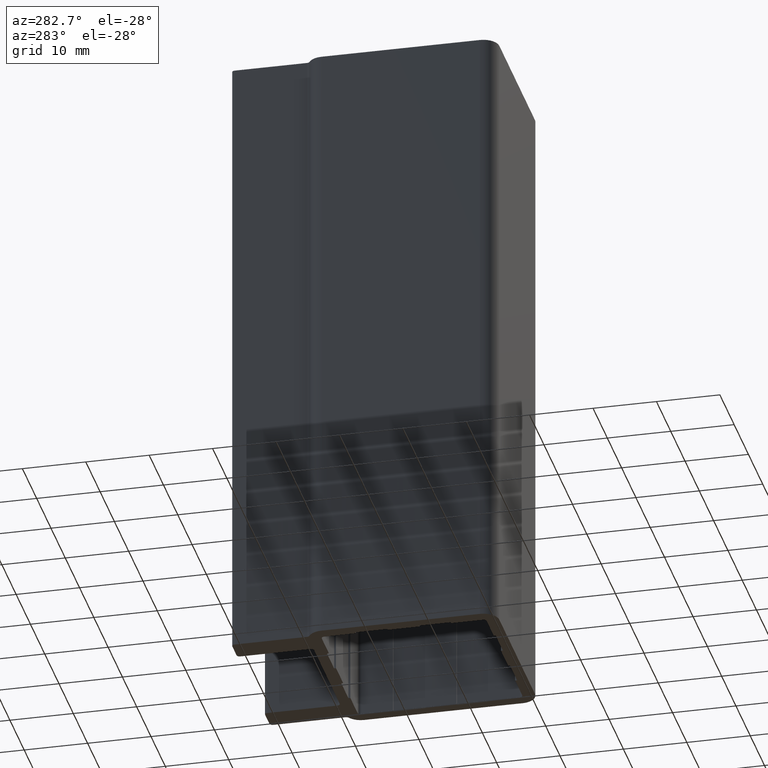
[diagram: clean part render]
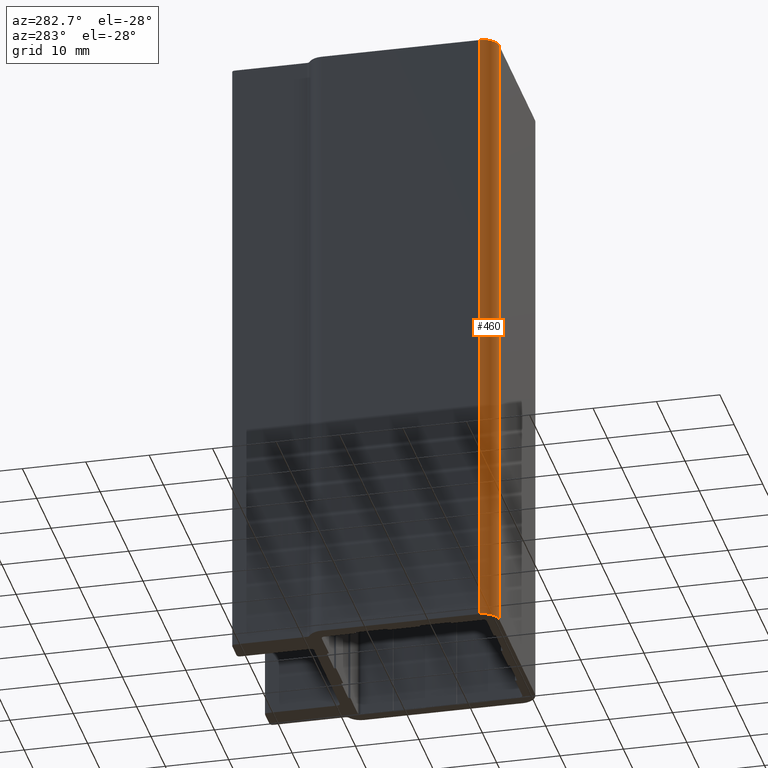
[diagram: same view with one face highlighted and labeled with its STEP entity id]
A machine part, auxiliary view. The second image highlights one B-rep face of the part: STEP entity #460.
In plain terms, the highlighted cylindrical surface (edge-blend (fillet) strip) has radius 2.5 mm, axis along (0, 0, 1).
Its self-contained STEP definition (entity closure, byte-faithful):
#403=CARTESIAN_POINT('',(-14.999999999984936,2.500000000000000,0.0));
#404=VERTEX_POINT('',#403);
#411=CARTESIAN_POINT('',(-14.999999999984936,2.500000000000000,100.0));
#412=VERTEX_POINT('',#411);
#413=CARTESIAN_POINT('',(-14.999999999984936,2.500000000000000,100.0));
#414=DIRECTION('',(0.0,0.0,-1.0));
#415=VECTOR('',#414,100.0);
#416=LINE('',#413,#415);
#417=EDGE_CURVE('',#412,#404,#416,.T.);
#428=CARTESIAN_POINT('',(-12.499999999984936,2.500000000000000,100.0));
#429=DIRECTION('',(0.0,0.0,1.0));
#430=DIRECTION('',(1.0,0.0,0.0));
#431=AXIS2_PLACEMENT_3D('',#428,#429,#430);
#432=CYLINDRICAL_SURFACE('',#431,2.500000000000000);
#433=ORIENTED_EDGE('',*,*,#417,.T.);
#434=CARTESIAN_POINT('',(-12.499999999984936,0.0,0.0));
#435=VERTEX_POINT('',#434);
#436=CARTESIAN_POINT('',(-12.499999999984936,2.500000000000000,0.0));
#437=DIRECTION('',(0.0,0.0,1.0));
#438=DIRECTION('',(1.0,0.0,0.0));
#439=AXIS2_PLACEMENT_3D('',#436,#437,#438);
#440=CIRCLE('',#439,2.500000000000000);
#441=EDGE_CURVE('',#404,#435,#440,.T.);
#442=ORIENTED_EDGE('',*,*,#441,.T.);
#443=CARTESIAN_POINT('',(-12.499999999984936,0.0,100.0));
#444=VERTEX_POINT('',#443);
#445=CARTESIAN_POINT('',(-12.499999999984936,0.0,100.0));
#446=DIRECTION('',(0.0,0.0,-1.0));
#447=VECTOR('',#446,100.0);
#448=LINE('',#445,#447);
#449=EDGE_CURVE('',#444,#435,#448,.T.);
#450=ORIENTED_EDGE('',*,*,#449,.F.);
#451=CARTESIAN_POINT('',(-12.499999999984936,2.500000000000000,100.0));
#452=DIRECTION('',(0.0,0.0,1.0));
#453=DIRECTION('',(1.0,0.0,0.0));
#454=AXIS2_PLACEMENT_3D('',#451,#452,#453);
#455=CIRCLE('',#454,2.500000000000000);
#456=EDGE_CURVE('',#412,#444,#455,.T.);
#457=ORIENTED_EDGE('',*,*,#456,.F.);
#458=EDGE_LOOP('',(#433,#442,#450,#457));
#459=FACE_OUTER_BOUND('',#458,.T.);
#460=ADVANCED_FACE('',(#459),#432,.T.);